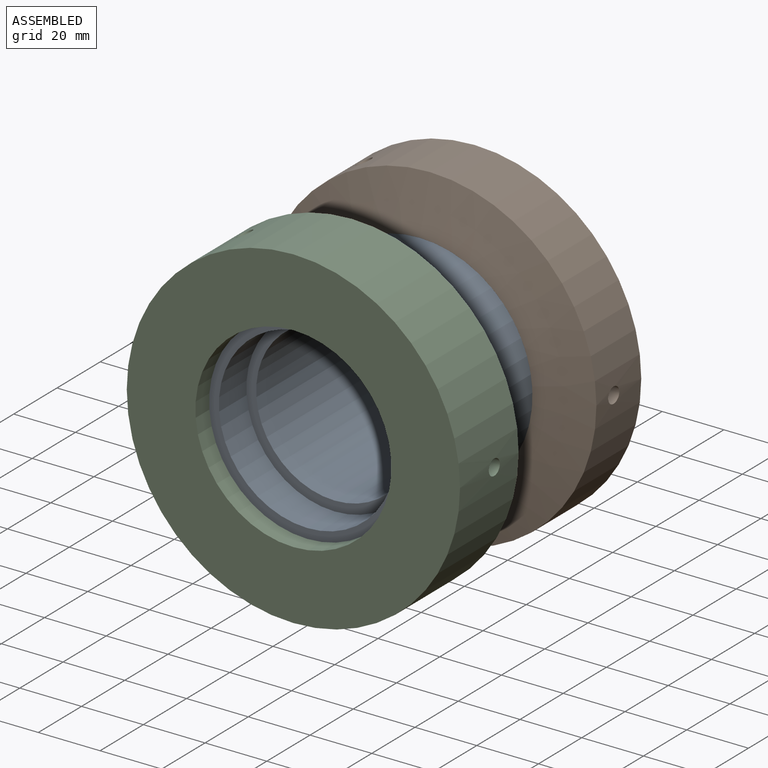
[diagram: assembled view]
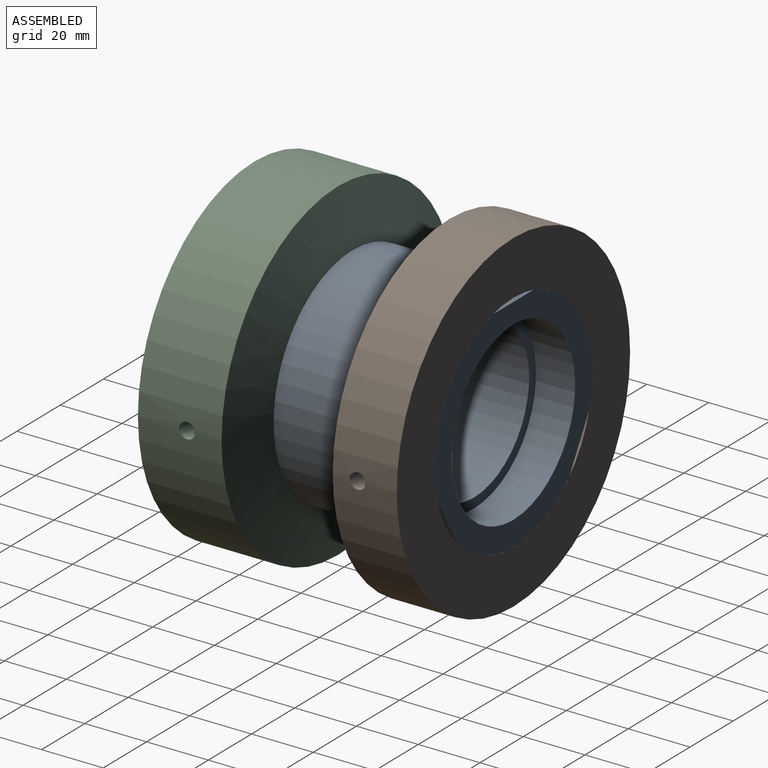
[diagram: assembled view, second angle]
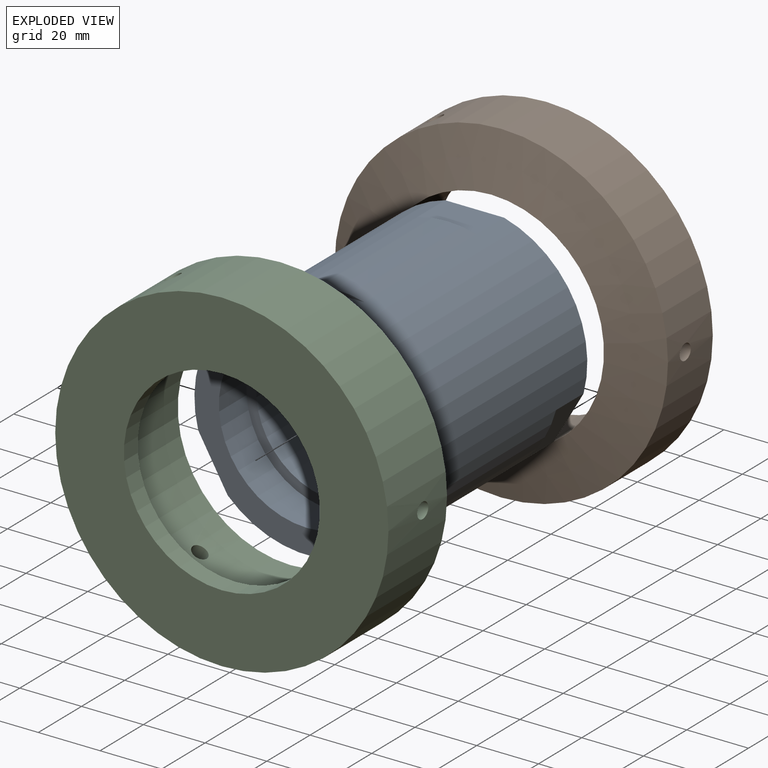
[diagram: exploded view]
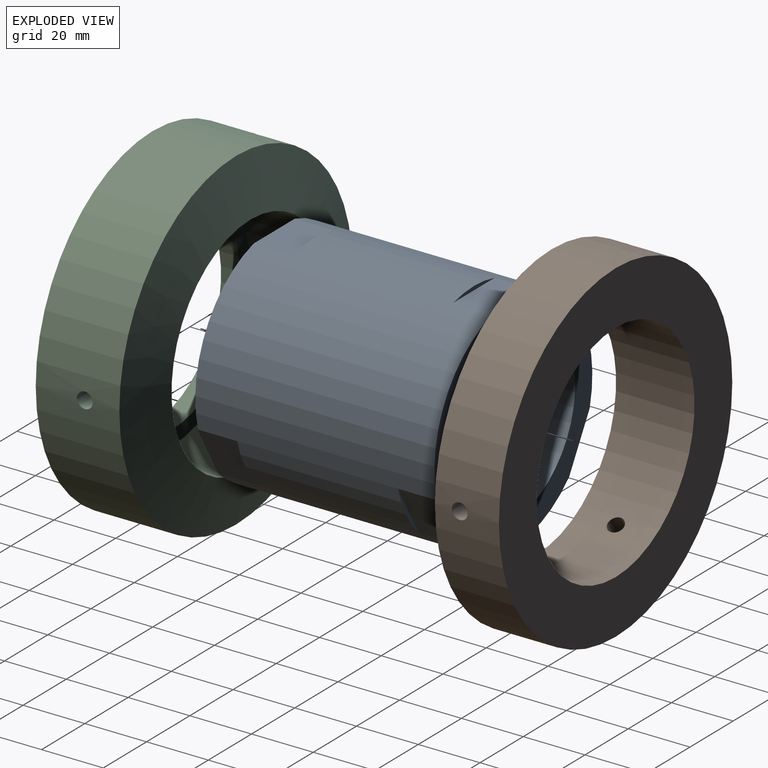
[diagram: exploded view, second angle]
ASSEMBLY  parts=3 mates=2
PART A: 20 faces, bbox 73x77.5x73 mm
  f0: cylinder r=36.51mm len=77.47mm, axis (0,1,0), area 16298.7mm2, adj f1,f5,f6,f7,f8,f9,f10,f11
  f1: plane 73.03x71.76mm, normal (0,-1,0), area 1574.4mm2, adj f0,f4,f6,f8,f10
  f2: cylinder r=25.4mm len=52.07mm, axis (0,-1,0), area 8310mm2, adj f3,f12
  f3: plane 57.15x57.15mm, normal (0,-1,0), area 538.4mm2, adj f2,f4
  f4: cylinder r=28.57mm len=57.15mm, axis (0,-1,0), area 2280.2mm2, adj f1,f3
  f5: plane 19.09x1.27mm, normal (0,-1,0), area 16.2mm2, adj f0,f6
  f6: plane 19.09x12.75mm, normal (0,0,1), area 243.5mm2, adj f0,f1,f5
  f7: plane 16.53x9.55mm, normal (0,-1,0), area 16.2mm2, adj f0,f8
  f8: plane 16.53x12.7mm, normal (0.87,0,-0.5), area 242.5mm2, adj f0,f1,f7
  f9: plane 16.53x9.55mm, normal (0,-1,0), area 16.2mm2, adj f0,f10
  f10: plane 16.53x12.7mm, normal (-0.87,0,-0.5), area 242.5mm2, adj f0,f1,f9
  f11: plane 73.03x71.76mm, normal (0,1,0), area 1574.4mm2, adj f0,f13,f15,f17,f19
  f12: plane 57.15x57.15mm, normal (0,1,0), area 538.4mm2, adj f2,f13
  f13: cylinder r=28.57mm len=57.15mm, axis (0,1,0), area 2280.2mm2, adj f11,f12
  f14: plane 19.09x1.27mm, normal (0,1,0), area 16.2mm2, adj f0,f15
  f15: plane 19.09x12.75mm, normal (0,0,1), area 243.5mm2, adj f0,f11,f14
  f16: plane 16.53x9.55mm, normal (0,1,0), area 16.2mm2, adj f0,f17
  f17: plane 16.53x12.7mm, normal (0.87,0,-0.5), area 242.5mm2, adj f0,f11,f16
  f18: plane 16.53x9.55mm, normal (0,1,0), area 16.2mm2, adj f0,f19
  f19: plane 16.53x12.7mm, normal (-0.87,0,-0.5), area 242.5mm2, adj f0,f11,f18
PART B: 8 faces, bbox 108x25.4x108 mm
  f0: cylinder r=53.98mm len=107.95mm, axis (0,1,0), area 6971.1mm2, adj f3,f4,f5,f6,f7
  f1: cylinder r=36.51mm len=73.03mm, axis (0,-1,0), area 5766.1mm2, adj f2,f3,f5,f6,f7
  f2: plane 73.15x73.15mm, normal (0,-1,0), area 14.6mm2, adj f1,f4
  f3: plane 107.95x107.95mm, normal (0,1,0), area 4964.1mm2, adj f0,f1
  f4: cone r=36.58mm half-angle=75deg, axis (0,1,0), area 5124.2mm2, adj f0,f2
  f5: cylinder r=2.55mm len=17.75mm, axis (-0.5,0,0.87), area 280.3mm2, adj f0,f1
  f6: cylinder r=2.55mm len=17.55mm, axis (1,0,0), area 280.3mm2, adj f0,f1
  f7: cylinder r=2.55mm len=17.75mm, axis (-0.5,0,-0.87), area 280.3mm2, adj f0,f1
PART C: 10 faces, bbox 108x31.8x108 mm
  f0: cylinder r=53.98mm len=107.95mm, axis (0,1,0), area 9124.6mm2, adj f4,f6,f7,f8,f9
  f1: cylinder r=36.51mm len=73.03mm, axis (0,-1,0), area 5766.1mm2, adj f3,f5,f7,f8,f9
  f2: cylinder r=31.75mm len=63.5mm, axis (0,1,0), area 1266.8mm2, adj f4,f5
  f3: plane 73.15x73.15mm, normal (0,-1,0), area 14.6mm2, adj f1,f6
  f4: plane 107.95x107.95mm, normal (0,1,0), area 5985.5mm2, adj f0,f2
  f5: plane 73.03x73.03mm, normal (0,-1,0), area 1021.3mm2, adj f1,f2
  f6: cone r=36.58mm half-angle=75deg, axis (0,1,0), area 5124.2mm2, adj f0,f3
  f7: cylinder r=2.55mm len=17.75mm, axis (-0.5,0,0.87), area 280.3mm2, adj f0,f1
  f8: cylinder r=2.55mm len=17.55mm, axis (1,0,0), area 280.3mm2, adj f0,f1
  f9: cylinder r=2.55mm len=17.75mm, axis (-0.5,0,-0.87), area 280.3mm2, adj f0,f1
PLACE A t=(-60.73,-24.43,15.94)mm
PLACE B t=(-60.73,14.3,15.94)mm
PLACE C rot(axis=(1,0,0),180deg) t=(-60.73,-69.52,15.94)mm
MATE fastened C.f1 <-> A.f0  axis (0,1,0) through (-60.73,-63.17,15.94)mm
MATE fastened B.f1 <-> A.f0  axis (0,1,0) through (-60.73,14.3,15.94)mm
